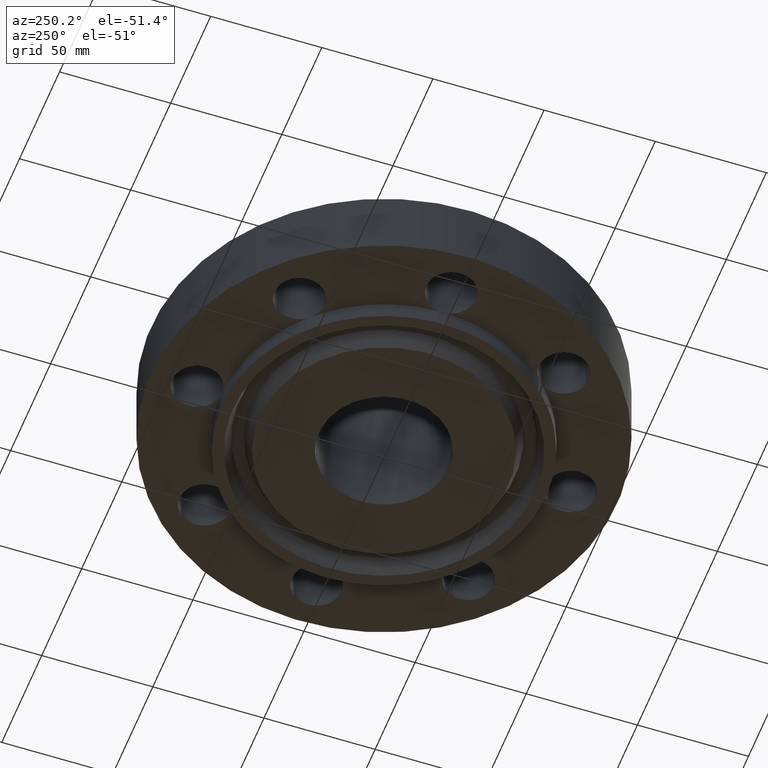
[diagram: clean part render]
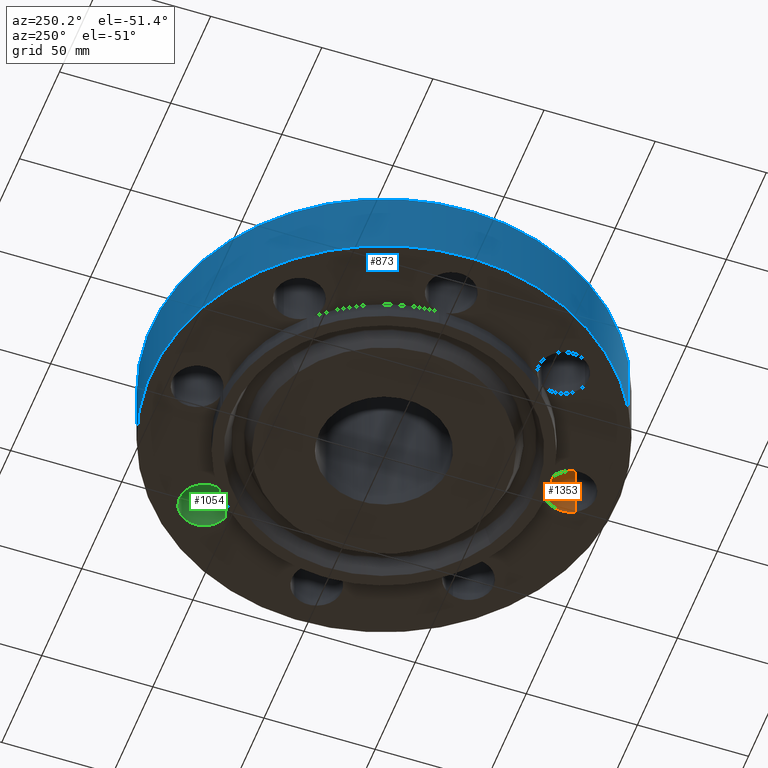
[diagram: same view with three faces highlighted in distinct colors, each labeled with its STEP entity id]
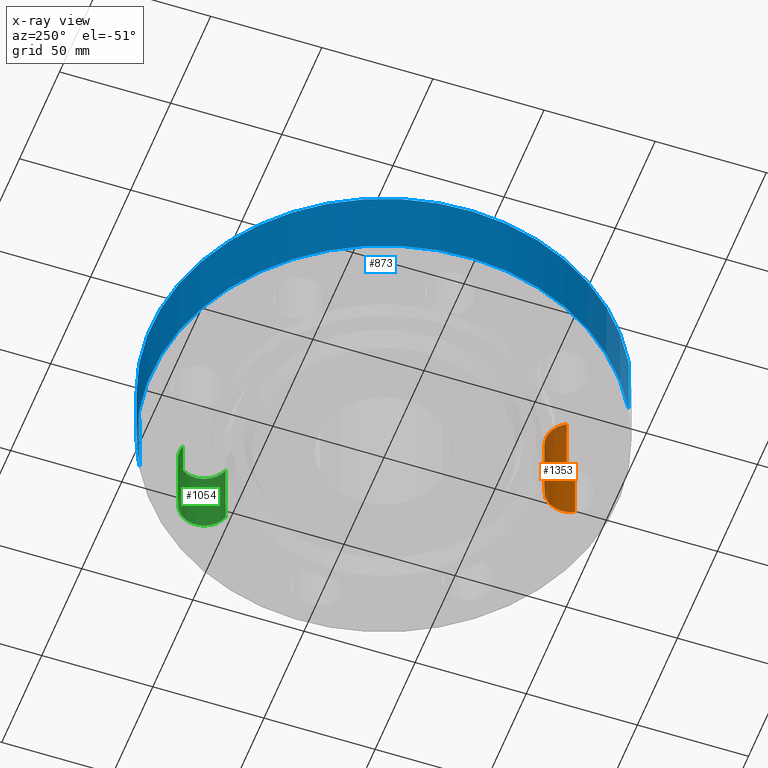
[diagram: x-ray of the same camera — body ghosted, the three highlighted faces saturated]
A machine part, auxiliary view with three faces highlighted in distinct colors.
The next image is the same camera in x-ray (body ghosted, the three faces saturated) — at least one of them is partly hidden behind the body in this view.
Their STEP definitions:

[orange] entity #1353 — the highlighted cylindrical surface (edge-blend (fillet) strip) has radius 11.176 mm, axis along (0, 0, -1).
#355=AXIS2_PLACEMENT_3D('Circle Axis2P3D',#353,#354,$) ;
#369=AXIS2_PLACEMENT_3D('Circle Axis2P3D',#367,#368,$) ;
#545=AXIS2_PLACEMENT_3D('Circle Axis2P3D',#543,#544,$) ;
#716=AXIS2_PLACEMENT_3D('Circle Axis2P3D',#714,#715,$) ;
#1326=AXIS2_PLACEMENT_3D('Cylinder Axis2P3D',#1323,#1324,#1325) ;
#350=CARTESIAN_POINT('Vertex',(-0.061640903685,-2.87433912388,-2.60212498967E-011)) ;
#353=CARTESIAN_POINT('Axis2P3D Location',(1.70622780996E-010,-3.31000000019,0.)) ;
#357=CARTESIAN_POINT('Vertex',(-0.386136327247,-3.09905276304,0.)) ;
#364=CARTESIAN_POINT('Vertex',(0.386136327247,-3.52094723697,0.)) ;
#367=CARTESIAN_POINT('Axis2P3D Location',(-9.86692792213E-011,-3.31000000003,0.)) ;
#371=CARTESIAN_POINT('Vertex',(0.061640903685,-2.87433912388,-2.60212498967E-011)) ;
#543=CARTESIAN_POINT('Axis2P3D Location',(1.74838271595E-017,-3.31000000003,1.25000000001)) ;
#547=CARTESIAN_POINT('Vertex',(-0.386136327236,-3.09905276303,1.24999999999)) ;
#549=CARTESIAN_POINT('Vertex',(0.386136327233,-3.520947237,1.24999999999)) ;
#711=CARTESIAN_POINT('Vertex',(0.061640903685,-2.87433912388,-0.312999999983)) ;
#714=CARTESIAN_POINT('Axis2P3D Location',(1.31128703696E-017,-3.31000000365,-0.313000000001)) ;
#718=CARTESIAN_POINT('Vertex',(-0.061640903685,-2.87433912388,-0.312999999983)) ;
#1304=CARTESIAN_POINT('Line Origine',(-0.061640903685,-2.87433912388,-0.156500000005)) ;
#1323=CARTESIAN_POINT('Axis2P3D Location',(4.05358090519E-016,-3.31000000001,1.24606299213)) ;
#1328=CARTESIAN_POINT('Line Origine',(-0.386136327233,-3.09905276302,0.468500000021)) ;
#1333=CARTESIAN_POINT('Line Origine',(0.0616409036858,-2.87433912388,0.468500000021)) ;
#1338=CARTESIAN_POINT('Line Origine',(0.386136327233,-3.520947237,0.468500000021)) ;
#354=DIRECTION('Axis2P3D Direction',(0.,0.,-0.0393700787402)) ;
#368=DIRECTION('Axis2P3D Direction',(0.,0.,-0.0393700787402)) ;
#544=DIRECTION('Axis2P3D Direction',(0.,0.,-0.0393700787402)) ;
#715=DIRECTION('Axis2P3D Direction',(0.,0.,-0.0393700787402)) ;
#1305=DIRECTION('Vector Direction',(0.,0.,-0.0393700787402)) ;
#1324=DIRECTION('Axis2P3D Direction',(0.,0.,-0.0393700787402)) ;
#1325=DIRECTION('Axis2P3D XDirection',(-0.0345504945626,0.0188750212049,0.)) ;
#1329=DIRECTION('Vector Direction',(0.,0.,-0.0393700787402)) ;
#1334=DIRECTION('Vector Direction',(0.,0.,-0.0393700787402)) ;
#1339=DIRECTION('Vector Direction',(0.,0.,-0.0393700787402)) ;
#1306=VECTOR('Line Direction',#1305,0.0393700787402) ;
#1330=VECTOR('Line Direction',#1329,0.0393700787402) ;
#1335=VECTOR('Line Direction',#1334,0.0393700787402) ;
#1340=VECTOR('Line Direction',#1339,0.0393700787402) ;
#1344=ORIENTED_EDGE('',*,*,#1332,.F.) ;
#1345=ORIENTED_EDGE('',*,*,#359,.T.) ;
#1346=ORIENTED_EDGE('',*,*,#1308,.T.) ;
#1347=ORIENTED_EDGE('',*,*,#720,.T.) ;
#1348=ORIENTED_EDGE('',*,*,#1337,.F.) ;
#1349=ORIENTED_EDGE('',*,*,#373,.T.) ;
#1350=ORIENTED_EDGE('',*,*,#1342,.T.) ;
#1351=ORIENTED_EDGE('',*,*,#551,.F.) ;
#1353=ADVANCED_FACE('PartBody',(#1352),#1327,.F.) ;
#356=CIRCLE('generated circle',#355,0.44000000024) ;
#370=CIRCLE('generated circle',#369,0.440000000076) ;
#546=CIRCLE('generated circle',#545,0.44000000002) ;
#717=CIRCLE('generated circle',#716,0.440000003609) ;
#1327=CYLINDRICAL_SURFACE('generated cylinder',#1326,0.440000000002) ;
#359=EDGE_CURVE('',#358,#351,#356,.T.) ;
#373=EDGE_CURVE('',#372,#365,#370,.T.) ;
#551=EDGE_CURVE('',#548,#550,#546,.T.) ;
#720=EDGE_CURVE('',#719,#712,#717,.T.) ;
#1308=EDGE_CURVE('',#351,#719,#1307,.T.) ;
#1332=EDGE_CURVE('',#358,#548,#1331,.F.) ;
#1337=EDGE_CURVE('',#372,#712,#1336,.T.) ;
#1342=EDGE_CURVE('',#365,#550,#1341,.F.) ;
#1343=EDGE_LOOP('',(#1344,#1345,#1346,#1347,#1348,#1349,#1350,#1351)) ;
#1352=FACE_OUTER_BOUND('',#1343,.T.) ;
#1307=LINE('Line',#1304,#1306) ;
#1331=LINE('Line',#1328,#1330) ;
#1336=LINE('Line',#1333,#1335) ;
#1341=LINE('Line',#1338,#1340) ;
#351=VERTEX_POINT('',#350) ;
#358=VERTEX_POINT('',#357) ;
#365=VERTEX_POINT('',#364) ;
#372=VERTEX_POINT('',#371) ;
#548=VERTEX_POINT('',#547) ;
#550=VERTEX_POINT('',#549) ;
#712=VERTEX_POINT('',#711) ;
#719=VERTEX_POINT('',#718) ;

[blue] entity #873 — the highlighted cylindrical surface (partial cylindrical patch) has radius 104.775 mm, axis along (0, 0, -1).
#169=AXIS2_PLACEMENT_3D('Circle Axis2P3D',#167,#168,$) ;
#460=AXIS2_PLACEMENT_3D('Circle Axis2P3D',#458,#459,$) ;
#855=AXIS2_PLACEMENT_3D('Cylinder Axis2P3D',#852,#853,#854) ;
#167=CARTESIAN_POINT('Axis2P3D Location',(1.1189649382E-015,-4.66552430985E-012,0.)) ;
#171=CARTESIAN_POINT('Vertex',(-1.97763034678,-3.62002806782,0.)) ;
#173=CARTESIAN_POINT('Vertex',(1.97763034675,3.62002806781,-2.60212498967E-011)) ;
#453=CARTESIAN_POINT('Vertex',(1.97763034678,3.62002806783,1.25000000001)) ;
#455=CARTESIAN_POINT('Vertex',(-1.97763034675,-3.62002806781,1.24999999997)) ;
#458=CARTESIAN_POINT('Axis2P3D Location',(1.1189649382E-015,5.33466534289E-012,1.25000000001)) ;
#852=CARTESIAN_POINT('Axis2P3D Location',(0.,0.,1.46850000001)) ;
#857=CARTESIAN_POINT('Line Origine',(-1.97763034675,-3.62002806781,0.624999999992)) ;
#862=CARTESIAN_POINT('Line Origine',(1.97763034675,3.62002806781,0.624999999992)) ;
#168=DIRECTION('Axis2P3D Direction',(0.,0.,-0.0393700787402)) ;
#459=DIRECTION('Axis2P3D Direction',(0.,0.,-0.0393700787402)) ;
#853=DIRECTION('Axis2P3D Direction',(0.,0.,-0.0393700787402)) ;
#854=DIRECTION('Axis2P3D XDirection',(-0.0188750212049,-0.0345504945626,0.)) ;
#858=DIRECTION('Vector Direction',(0.,0.,-0.0393700787402)) ;
#863=DIRECTION('Vector Direction',(0.,0.,-0.0393700787402)) ;
#859=VECTOR('Line Direction',#858,0.0393700787402) ;
#864=VECTOR('Line Direction',#863,0.0393700787402) ;
#868=ORIENTED_EDGE('',*,*,#175,.F.) ;
#869=ORIENTED_EDGE('',*,*,#861,.T.) ;
#870=ORIENTED_EDGE('',*,*,#462,.T.) ;
#871=ORIENTED_EDGE('',*,*,#866,.F.) ;
#873=ADVANCED_FACE('PartBody',(#872),#856,.T.) ;
#170=CIRCLE('generated circle',#169,4.12500000004) ;
#461=CIRCLE('generated circle',#460,4.12500000004) ;
#856=CYLINDRICAL_SURFACE('generated cylinder',#855,4.12500000002) ;
#175=EDGE_CURVE('',#172,#174,#170,.T.) ;
#462=EDGE_CURVE('',#456,#454,#461,.T.) ;
#861=EDGE_CURVE('',#172,#456,#860,.F.) ;
#866=EDGE_CURVE('',#174,#454,#865,.F.) ;
#867=EDGE_LOOP('',(#868,#869,#870,#871)) ;
#872=FACE_OUTER_BOUND('',#867,.T.) ;
#860=LINE('Line',#857,#859) ;
#865=LINE('Line',#862,#864) ;
#172=VERTEX_POINT('',#171) ;
#174=VERTEX_POINT('',#173) ;
#454=VERTEX_POINT('',#453) ;
#456=VERTEX_POINT('',#455) ;

[green] entity #1054 — the highlighted cylindrical surface (edge-blend (fillet) strip) has radius 11.176 mm, axis along (0, -0, -1).
#231=AXIS2_PLACEMENT_3D('Circle Axis2P3D',#229,#230,$) ;
#500=AXIS2_PLACEMENT_3D('Circle Axis2P3D',#498,#499,$) ;
#1046=AXIS2_PLACEMENT_3D('Cylinder Axis2P3D',#1043,#1044,#1045) ;
#226=CARTESIAN_POINT('Vertex',(2.46440083947,1.91832160855,0.)) ;
#229=CARTESIAN_POINT('Axis2P3D Location',(2.34052344574,2.34052344573,0.)) ;
#233=CARTESIAN_POINT('Vertex',(2.216646052,2.76272528291,0.)) ;
#493=CARTESIAN_POINT('Vertex',(2.46440083947,1.91832160856,1.25000000001)) ;
#495=CARTESIAN_POINT('Vertex',(2.21664605204,2.76272528294,1.24999999999)) ;
#498=CARTESIAN_POINT('Axis2P3D Location',(2.34052344574,2.34052344574,1.25000000001)) ;
#1010=CARTESIAN_POINT('Line Origine',(2.46440083944,1.91832160854,0.468500000011)) ;
#1020=CARTESIAN_POINT('Line Origine',(2.21664605204,2.76272528294,0.468500000011)) ;
#1043=CARTESIAN_POINT('Axis2P3D Location',(2.34052344574,2.34052344574,1.24606299213)) ;
#230=DIRECTION('Axis2P3D Direction',(0.,0.,-0.0393700787402)) ;
#499=DIRECTION('Axis2P3D Direction',(0.,0.,-0.0393700787402)) ;
#1011=DIRECTION('Vector Direction',(0.,0.,-0.0393700787402)) ;
#1021=DIRECTION('Vector Direction',(0.,0.,-0.0393700787402)) ;
#1044=DIRECTION('Axis2P3D Direction',(0.,-0.,-0.0393700787402)) ;
#1045=DIRECTION('Axis2P3D XDirection',(-0.0110842335096,0.0377775444876,0.)) ;
#1012=VECTOR('Line Direction',#1011,0.0393700787402) ;
#1022=VECTOR('Line Direction',#1021,0.0393700787402) ;
#1049=ORIENTED_EDGE('',*,*,#1024,.F.) ;
#1050=ORIENTED_EDGE('',*,*,#235,.T.) ;
#1051=ORIENTED_EDGE('',*,*,#1014,.T.) ;
#1052=ORIENTED_EDGE('',*,*,#502,.F.) ;
#1054=ADVANCED_FACE('PartBody',(#1053),#1047,.F.) ;
#232=CIRCLE('generated circle',#231,0.439999999995) ;
#501=CIRCLE('generated circle',#500,0.439999999995) ;
#1047=CYLINDRICAL_SURFACE('generated cylinder',#1046,0.440000000002) ;
#235=EDGE_CURVE('',#234,#227,#232,.T.) ;
#502=EDGE_CURVE('',#496,#494,#501,.T.) ;
#1014=EDGE_CURVE('',#227,#494,#1013,.F.) ;
#1024=EDGE_CURVE('',#234,#496,#1023,.F.) ;
#1048=EDGE_LOOP('',(#1049,#1050,#1051,#1052)) ;
#1053=FACE_OUTER_BOUND('',#1048,.T.) ;
#1013=LINE('Line',#1010,#1012) ;
#1023=LINE('Line',#1020,#1022) ;
#227=VERTEX_POINT('',#226) ;
#234=VERTEX_POINT('',#233) ;
#494=VERTEX_POINT('',#493) ;
#496=VERTEX_POINT('',#495) ;